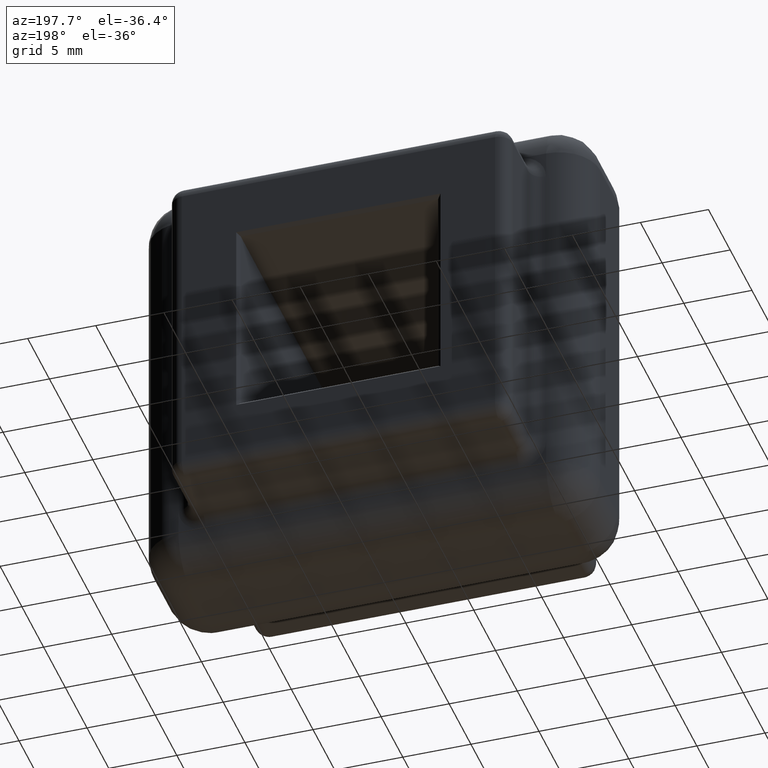
[diagram: clean part render]
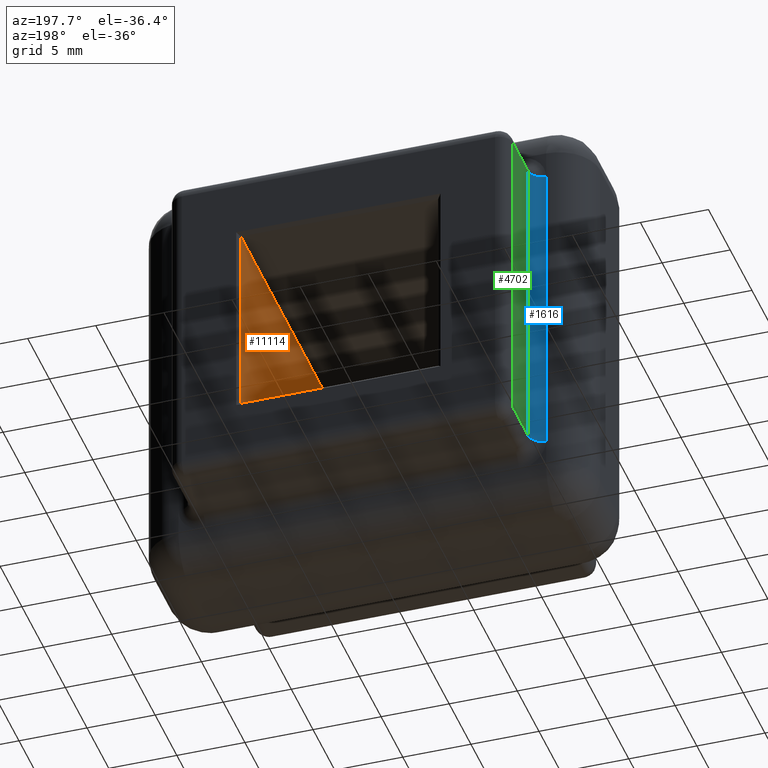
[diagram: same view with three faces highlighted in distinct colors, each labeled with its STEP entity id]
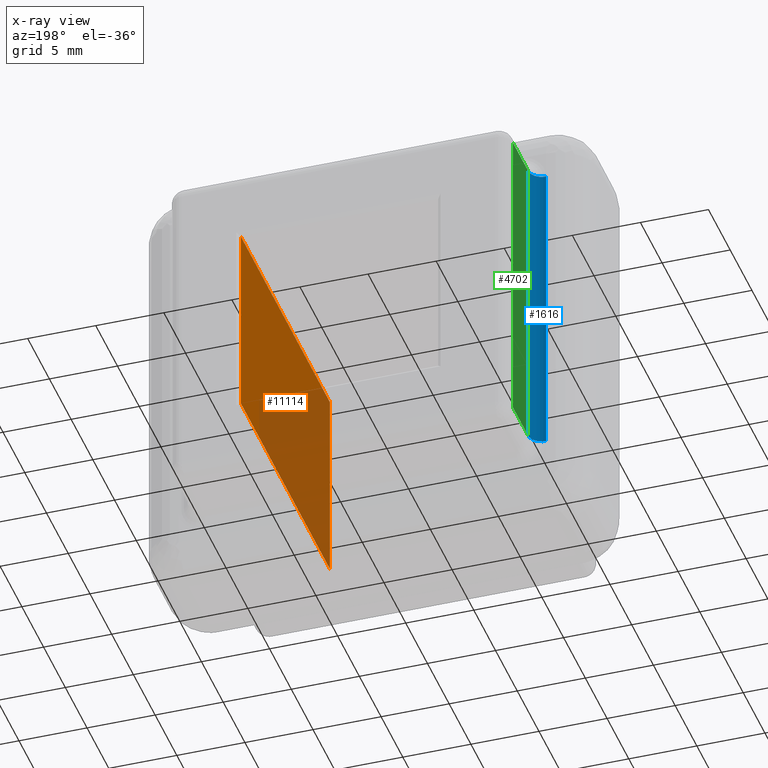
[diagram: x-ray of the same camera — body ghosted, the three highlighted faces saturated]
A machine part, auxiliary view with three faces highlighted in distinct colors.
The next image is the same camera in x-ray (body ghosted, the three faces saturated) — at least one of them is partly hidden behind the body in this view.
Their STEP definitions:

[orange] entity #11114 — the highlighted planar face has unit normal (1, 0, 0).
#384 = EDGE_CURVE ( 'NONE', #10145, #2606, #8902, .T. ) ;
#511 = VECTOR ( 'NONE', #5352, 1000.000000000000000 ) ;
#631 = EDGE_LOOP ( 'NONE', ( #11329, #9266, #10492, #1798 ) ) ;
#937 = CARTESIAN_POINT ( 'NONE',  ( 7.249999999999998200, -10.49999999999999800, 7.249999999999999100 ) ) ;
#1098 = CARTESIAN_POINT ( 'NONE',  ( 7.249999999999998200, -10.49999999999999800, 7.249999999999999100 ) ) ;
#1163 = FACE_OUTER_BOUND ( 'NONE', #631, .T. ) ;
#1283 = AXIS2_PLACEMENT_3D ( 'NONE', #937, #10709, #7053 ) ;
#1300 = CARTESIAN_POINT ( 'NONE',  ( 7.249999999999998200, 10.24999999999999800, -7.250000000000000000 ) ) ;
#1428 = VERTEX_POINT ( 'NONE', #7615 ) ;
#1798 = ORIENTED_EDGE ( 'NONE', *, *, #8559, .T. ) ;
#2606 = VERTEX_POINT ( 'NONE', #5283 ) ;
#3051 = CARTESIAN_POINT ( 'NONE',  ( 7.249999999999998200, -10.49999999999999800, -7.250000000000000000 ) ) ;
#3638 = PLANE ( 'NONE',  #1283 ) ;
#4662 = CARTESIAN_POINT ( 'NONE',  ( 7.249999999999998200, -10.24999999999999800, 7.249999999999999100 ) ) ;
#4844 = EDGE_CURVE ( 'NONE', #1428, #11017, #6895, .T. ) ;
#5283 = CARTESIAN_POINT ( 'NONE',  ( 7.249999999999998200, 10.24999999999999800, 7.249999999999999100 ) ) ;
#5352 = DIRECTION ( 'NONE',  ( -0.0000000000000000000, 1.000000000000000000, -0.0000000000000000000 ) ) ;
#5739 = DIRECTION ( 'NONE',  ( -0.0000000000000000000, 1.000000000000000000, -0.0000000000000000000 ) ) ;
#6180 = EDGE_CURVE ( 'NONE', #1428, #10145, #8142, .T. ) ;
#6895 = LINE ( 'NONE', #3051, #8277 ) ;
#7053 = DIRECTION ( 'NONE',  ( 0.0000000000000000000, 0.0000000000000000000, -1.000000000000000000 ) ) ;
#7298 = VECTOR ( 'NONE', #8085, 1000.000000000000000 ) ;
#7615 = CARTESIAN_POINT ( 'NONE',  ( 7.249999999999998200, -10.24999999999999800, -7.250000000000000000 ) ) ;
#8085 = DIRECTION ( 'NONE',  ( 0.0000000000000000000, 0.0000000000000000000, 1.000000000000000000 ) ) ;
#8142 = LINE ( 'NONE', #4662, #7298 ) ;
#8211 = DIRECTION ( 'NONE',  ( 0.0000000000000000000, 0.0000000000000000000, -1.000000000000000000 ) ) ;
#8277 = VECTOR ( 'NONE', #5739, 1000.000000000000000 ) ;
#8480 = CARTESIAN_POINT ( 'NONE',  ( 7.249999999999998200, -10.24999999999999800, 7.249999999999999100 ) ) ;
#8559 = EDGE_CURVE ( 'NONE', #2606, #11017, #10193, .T. ) ;
#8902 = LINE ( 'NONE', #1098, #511 ) ;
#9266 = ORIENTED_EDGE ( 'NONE', *, *, #6180, .T. ) ;
#9655 = VECTOR ( 'NONE', #8211, 1000.000000000000000 ) ;
#10145 = VERTEX_POINT ( 'NONE', #8480 ) ;
#10193 = LINE ( 'NONE', #1300, #9655 ) ;
#10440 = CARTESIAN_POINT ( 'NONE',  ( 7.249999999999998200, 10.24999999999999800, -7.250000000000000000 ) ) ;
#10492 = ORIENTED_EDGE ( 'NONE', *, *, #384, .T. ) ;
#10709 = DIRECTION ( 'NONE',  ( 1.000000000000000000, 0.0000000000000000000, 0.0000000000000000000 ) ) ;
#11017 = VERTEX_POINT ( 'NONE', #10440 ) ;
#11114 = ADVANCED_FACE ( 'NONE', ( #1163 ), #3638, .F. ) ;
#11329 = ORIENTED_EDGE ( 'NONE', *, *, #4844, .F. ) ;

[blue] entity #1616 — the highlighted cylindrical surface (edge-blend (fillet) strip) has radius 1 mm, axis along (0, -0, 1).
#61 = DIRECTION ( 'NONE',  ( 1.000000000000000000, 0.0000000000000000000, 0.0000000000000000000 ) ) ;
#500 = DIRECTION ( 'NONE',  ( 1.000000000000000000, 0.0000000000000000000, 0.0000000000000000000 ) ) ;
#809 = CARTESIAN_POINT ( 'NONE',  ( -13.50000000000000500, 5.000000000000000000, -11.50000000000000000 ) ) ;
#857 = CARTESIAN_POINT ( 'NONE',  ( -13.49999999999999800, 5.000000000000000000, 16.50000000000000000 ) ) ;
#945 = CARTESIAN_POINT ( 'NONE',  ( -13.49999999999999800, 6.000000000000000000, -12.49999999999999800 ) ) ;
#1049 = DIRECTION ( 'NONE',  ( 6.938893903907228400E-017, -0.0000000000000000000, 1.000000000000000000 ) ) ;
#1085 = CARTESIAN_POINT ( 'NONE',  ( -12.49999999999999600, 6.000000000000000000, 11.50000000000000400 ) ) ;
#1616 = ADVANCED_FACE ( 'NONE', ( #4482 ), #10092, .F. ) ;
#1642 = CARTESIAN_POINT ( 'NONE',  ( -13.49999999999999800, 5.000000000000000000, 11.50000000000000400 ) ) ;
#1647 = EDGE_CURVE ( 'NONE', #6858, #7606, #5166, .T. ) ;
#2270 = CARTESIAN_POINT ( 'NONE',  ( -12.49999999999999800, 6.000000000000000000, -11.50000000000000000 ) ) ;
#2549 = CIRCLE ( 'NONE', #6489, 1.000000000000000900 ) ;
#2731 = AXIS2_PLACEMENT_3D ( 'NONE', #9844, #10753, #10686 ) ;
#2918 = LINE ( 'NONE', #9759, #6239 ) ;
#3307 = AXIS2_PLACEMENT_3D ( 'NONE', #945, #7882, #61 ) ;
#3480 = ORIENTED_EDGE ( 'NONE', *, *, #1647, .T. ) ;
#3580 = LINE ( 'NONE', #857, #5937 ) ;
#4482 = FACE_OUTER_BOUND ( 'NONE', #10613, .T. ) ;
#4943 = DIRECTION ( 'NONE',  ( -0.0000000000000000000, 0.0000000000000000000, 1.000000000000000000 ) ) ;
#5166 = CIRCLE ( 'NONE', #2731, 1.000000000000000900 ) ;
#5273 = DIRECTION ( 'NONE',  ( 2.102695122396129900E-016, -0.0000000000000000000, 1.000000000000000000 ) ) ;
#5788 = VERTEX_POINT ( 'NONE', #809 ) ;
#5937 = VECTOR ( 'NONE', #5273, 1000.000000000000000 ) ;
#6239 = VECTOR ( 'NONE', #1049, 1000.000000000000000 ) ;
#6489 = AXIS2_PLACEMENT_3D ( 'NONE', #7362, #4943, #500 ) ;
#6858 = VERTEX_POINT ( 'NONE', #1642 ) ;
#7362 = CARTESIAN_POINT ( 'NONE',  ( -13.49999999999999800, 6.000000000000000000, -11.50000000000000000 ) ) ;
#7606 = VERTEX_POINT ( 'NONE', #1085 ) ;
#7882 = DIRECTION ( 'NONE',  ( 6.938893903907228400E-017, -0.0000000000000000000, 1.000000000000000000 ) ) ;
#8012 = ORIENTED_EDGE ( 'NONE', *, *, #10061, .F. ) ;
#8283 = ORIENTED_EDGE ( 'NONE', *, *, #9428, .T. ) ;
#9428 = EDGE_CURVE ( 'NONE', #5788, #6858, #3580, .T. ) ;
#9759 = CARTESIAN_POINT ( 'NONE',  ( -12.49999999999999800, 6.000000000000000000, -12.49999999999999800 ) ) ;
#9844 = CARTESIAN_POINT ( 'NONE',  ( -13.49999999999999800, 6.000000000000000000, 11.50000000000000400 ) ) ;
#10061 = EDGE_CURVE ( 'NONE', #5788, #10564, #2549, .T. ) ;
#10092 = CYLINDRICAL_SURFACE ( 'NONE', #3307, 1.000000000000000900 ) ;
#10564 = VERTEX_POINT ( 'NONE', #2270 ) ;
#10613 = EDGE_LOOP ( 'NONE', ( #3480, #11109, #8012, #8283 ) ) ;
#10686 = DIRECTION ( 'NONE',  ( -1.000000000000000000, 0.0000000000000000000, 0.0000000000000000000 ) ) ;
#10753 = DIRECTION ( 'NONE',  ( -0.0000000000000000000, -0.0000000000000000000, 1.000000000000000000 ) ) ;
#11109 = ORIENTED_EDGE ( 'NONE', *, *, #11206, .F. ) ;
#11206 = EDGE_CURVE ( 'NONE', #10564, #7606, #2918, .T. ) ;

[green] entity #4702 — the highlighted planar face has unit normal (1, 0, -0).
#412 = CARTESIAN_POINT ( 'NONE',  ( -12.49999999999999800, 9.499999999999998200, -12.49999999999999800 ) ) ;
#426 = PLANE ( 'NONE',  #1390 ) ;
#513 = CARTESIAN_POINT ( 'NONE',  ( -12.49999999999999800, 10.49999999999999800, -12.49999999999999800 ) ) ;
#544 = CARTESIAN_POINT ( 'NONE',  ( -12.49999999999999600, 9.499999999999998200, 11.50000000000000400 ) ) ;
#868 = FACE_OUTER_BOUND ( 'NONE', #4029, .T. ) ;
#1049 = DIRECTION ( 'NONE',  ( 6.938893903907228400E-017, -0.0000000000000000000, 1.000000000000000000 ) ) ;
#1085 = CARTESIAN_POINT ( 'NONE',  ( -12.49999999999999600, 6.000000000000000000, 11.50000000000000400 ) ) ;
#1390 = AXIS2_PLACEMENT_3D ( 'NONE', #513, #11012, #10166 ) ;
#1395 = ORIENTED_EDGE ( 'NONE', *, *, #11206, .T. ) ;
#1904 = EDGE_CURVE ( 'NONE', #2895, #10564, #2406, .T. ) ;
#2192 = DIRECTION ( 'NONE',  ( -6.938893903907228400E-017, -0.0000000000000000000, -1.000000000000000000 ) ) ;
#2213 = CARTESIAN_POINT ( 'NONE',  ( -12.49999999999999800, 10.49999999999999800, -11.50000000000000000 ) ) ;
#2270 = CARTESIAN_POINT ( 'NONE',  ( -12.49999999999999800, 6.000000000000000000, -11.50000000000000000 ) ) ;
#2406 = LINE ( 'NONE', #2213, #6679 ) ;
#2895 = VERTEX_POINT ( 'NONE', #3979 ) ;
#2918 = LINE ( 'NONE', #9759, #6239 ) ;
#3979 = CARTESIAN_POINT ( 'NONE',  ( -12.49999999999999800, 9.499999999999998200, -11.50000000000000000 ) ) ;
#4029 = EDGE_LOOP ( 'NONE', ( #5403, #8235, #1395, #5841 ) ) ;
#4702 = ADVANCED_FACE ( 'NONE', ( #868 ), #426, .F. ) ;
#5403 = ORIENTED_EDGE ( 'NONE', *, *, #8690, .T. ) ;
#5726 = VERTEX_POINT ( 'NONE', #544 ) ;
#5841 = ORIENTED_EDGE ( 'NONE', *, *, #6996, .T. ) ;
#6239 = VECTOR ( 'NONE', #1049, 1000.000000000000000 ) ;
#6317 = DIRECTION ( 'NONE',  ( -0.0000000000000000000, 1.000000000000000000, -0.0000000000000000000 ) ) ;
#6494 = VECTOR ( 'NONE', #2192, 1000.000000000000000 ) ;
#6679 = VECTOR ( 'NONE', #7376, 1000.000000000000000 ) ;
#6996 = EDGE_CURVE ( 'NONE', #7606, #5726, #9401, .T. ) ;
#7307 = LINE ( 'NONE', #412, #6494 ) ;
#7376 = DIRECTION ( 'NONE',  ( 0.0000000000000000000, -1.000000000000000000, 0.0000000000000000000 ) ) ;
#7606 = VERTEX_POINT ( 'NONE', #1085 ) ;
#8235 = ORIENTED_EDGE ( 'NONE', *, *, #1904, .T. ) ;
#8690 = EDGE_CURVE ( 'NONE', #5726, #2895, #7307, .T. ) ;
#8821 = CARTESIAN_POINT ( 'NONE',  ( -12.49999999999999600, 10.49999999999999800, 11.50000000000000200 ) ) ;
#8867 = VECTOR ( 'NONE', #6317, 1000.000000000000000 ) ;
#9401 = LINE ( 'NONE', #8821, #8867 ) ;
#9759 = CARTESIAN_POINT ( 'NONE',  ( -12.49999999999999800, 6.000000000000000000, -12.49999999999999800 ) ) ;
#10166 = DIRECTION ( 'NONE',  ( -6.938893903907228400E-017, 0.0000000000000000000, -1.000000000000000000 ) ) ;
#10564 = VERTEX_POINT ( 'NONE', #2270 ) ;
#11012 = DIRECTION ( 'NONE',  ( 1.000000000000000000, 0.0000000000000000000, -6.938893903907228400E-017 ) ) ;
#11206 = EDGE_CURVE ( 'NONE', #10564, #7606, #2918, .T. ) ;